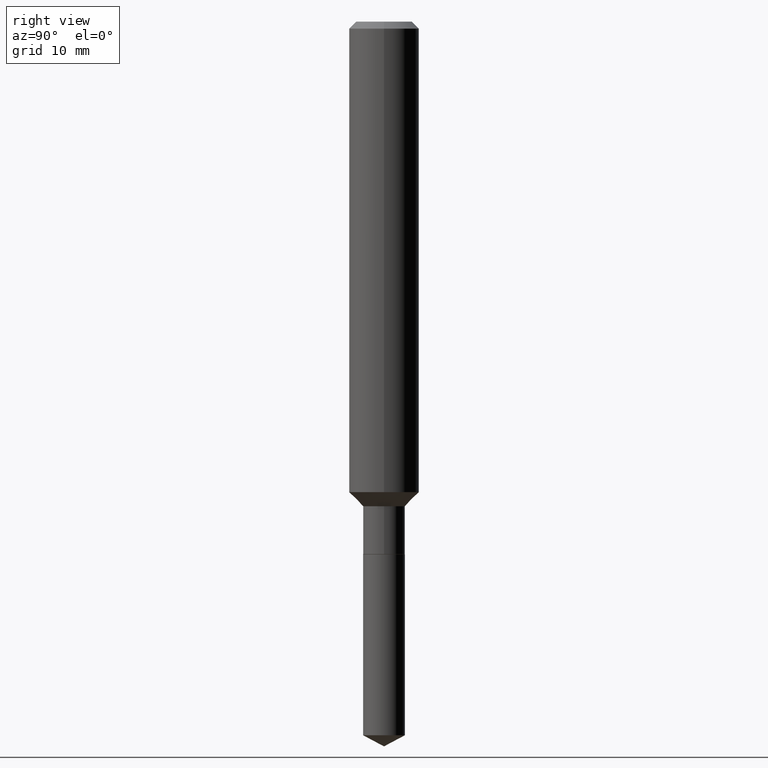
[diagram: clean part render]
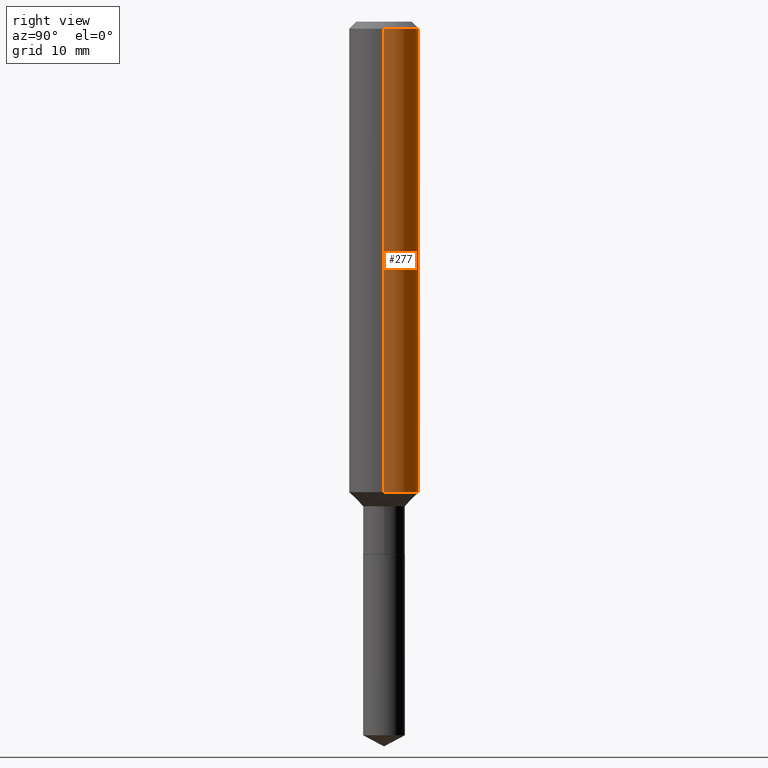
[diagram: same view with one face highlighted and labeled with its STEP entity id]
A machine part, right view. The second image highlights one B-rep face of the part: STEP entity #277.
In plain terms, the highlighted cylindrical surface (edge-blend (fillet) strip) has radius 2.9997 mm, axis along (-0, 0, 1).
Its self-contained STEP definition (entity closure, byte-faithful):
#7 = DIRECTION ( 'NONE',  ( -2.445468806185136877E-29, 3.491481338843145188E-15, 1.000000000000000000 ) ) ;
#12 = CARTESIAN_POINT ( 'NONE',  ( 0.1181000000000001909, -6.357289221765599043E-15, -1.584600000000000453 ) ) ;
#22 = CARTESIAN_POINT ( 'NONE',  ( -0.1180999999999999966, -1.968384088444482555E-15, -0.02362000000000014088 ) ) ;
#26 = CARTESIAN_POINT ( 'NONE',  ( 3.875089870280967892E-29, -5.532601329530849202E-15, -1.584600000000000453 ) ) ;
#44 = VERTEX_POINT ( 'NONE', #356 ) ;
#52 = DIRECTION ( 'NONE',  ( -2.445468806185136597E-29, 3.491481338843145583E-15, 1.000000000000000000 ) ) ;
#60 = CARTESIAN_POINT ( 'NONE',  ( 0.1181000000000001077, -8.246878922347488542E-16, 5.758764772215005345E-30 ) ) ;
#75 = CIRCLE ( 'NONE', #373, 0.1181000000000001909 ) ;
#95 = CARTESIAN_POINT ( 'NONE',  ( 0.000000000000000000, 0.000000000000000000, 0.000000000000000000 ) ) ;
#113 = AXIS2_PLACEMENT_3D ( 'NONE', #95, #132, #475 ) ;
#126 = FACE_OUTER_BOUND ( 'NONE', #483, .T. ) ;
#130 = ORIENTED_EDGE ( 'NONE', *, *, #167, .T. ) ;
#132 = DIRECTION ( 'NONE',  ( -2.445468806185136597E-29, 3.491481338843145583E-15, 1.000000000000000000 ) ) ;
#136 = ORIENTED_EDGE ( 'NONE', *, *, #396, .T. ) ;
#167 = EDGE_CURVE ( 'NONE', #44, #274, #425, .T. ) ;
#169 = CIRCLE ( 'NONE', #204, 0.1180999999999999966 ) ;
#182 = CARTESIAN_POINT ( 'NONE',  ( 0.1180999999999999966, -9.071566814582237199E-16, -0.02362000000000014088 ) ) ;
#204 = AXIS2_PLACEMENT_3D ( 'NONE', #233, #52, #487 ) ;
#211 = VERTEX_POINT ( 'NONE', #182 ) ;
#233 = CARTESIAN_POINT ( 'NONE',  ( 5.776197320209327532E-31, -8.246878922347559293E-17, -0.02362000000000014088 ) ) ;
#238 = VECTOR ( 'NONE', #393, 39.37007874015748143 ) ;
#274 = VERTEX_POINT ( 'NONE', #22 ) ;
#277 = ADVANCED_FACE ( 'NONE', ( #126 ), #469, .T. ) ;
#282 = LINE ( 'NONE', #60, #238 ) ;
#326 = VERTEX_POINT ( 'NONE', #12 ) ;
#327 = EDGE_CURVE ( 'NONE', #326, #211, #282, .T. ) ;
#330 = ORIENTED_EDGE ( 'NONE', *, *, #387, .F. ) ;
#356 = CARTESIAN_POINT ( 'NONE',  ( -0.1181000000000001909, -4.693450358598171005E-15, -1.584600000000000453 ) ) ;
#373 = AXIS2_PLACEMENT_3D ( 'NONE', #26, #408, #406 ) ;
#374 = CARTESIAN_POINT ( 'NONE',  ( -0.1181000000000001077, 8.391509709326790846E-16, -5.809262341591049389E-30 ) ) ;
#387 = EDGE_CURVE ( 'NONE', #211, #274, #169, .T. ) ;
#393 = DIRECTION ( 'NONE',  ( -2.445468806185136877E-29, 3.491481338843145188E-15, 1.000000000000000000 ) ) ;
#396 = EDGE_CURVE ( 'NONE', #326, #44, #75, .T. ) ;
#406 = DIRECTION ( 'NONE',  ( 1.000000000000000000, -6.982962677686269077E-15, 0.000000000000000000 ) ) ;
#408 = DIRECTION ( 'NONE',  ( -2.445468806185136597E-29, 3.491481338843145583E-15, 1.000000000000000000 ) ) ;
#422 = ORIENTED_EDGE ( 'NONE', *, *, #327, .F. ) ;
#425 = LINE ( 'NONE', #374, #456 ) ;
#456 = VECTOR ( 'NONE', #7, 39.37007874015748143 ) ;
#469 = CYLINDRICAL_SURFACE ( 'NONE', #113, 0.1181000000000001077 ) ;
#475 = DIRECTION ( 'NONE',  ( 1.000000000000000000, -6.982962677686266711E-15, 4.876176775795935793E-29 ) ) ;
#483 = EDGE_LOOP ( 'NONE', ( #136, #130, #330, #422 ) ) ;
#487 = DIRECTION ( 'NONE',  ( 1.000000000000000000, -6.982962677686266711E-15, 0.000000000000000000 ) ) ;